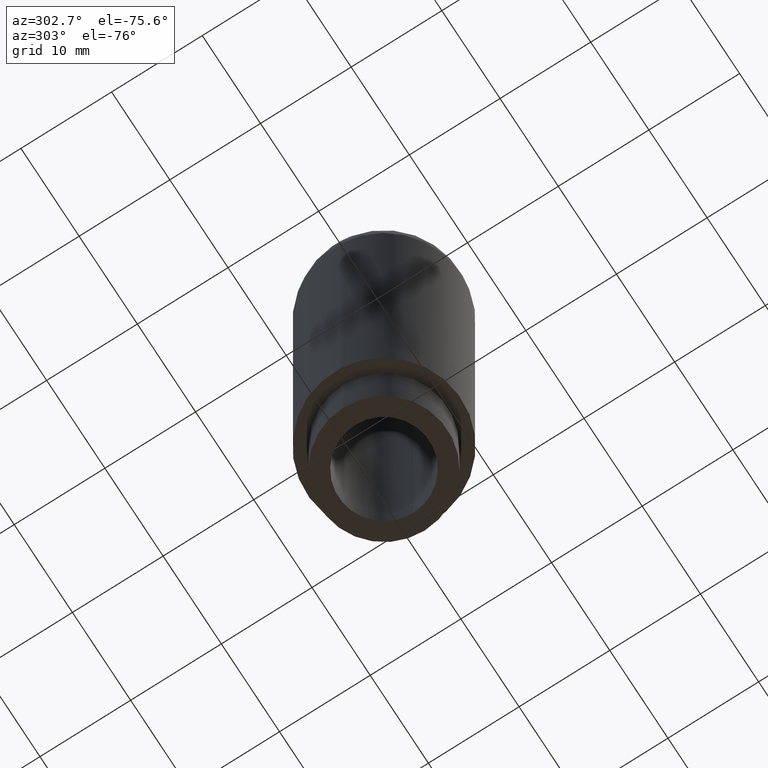
[diagram: clean part render]
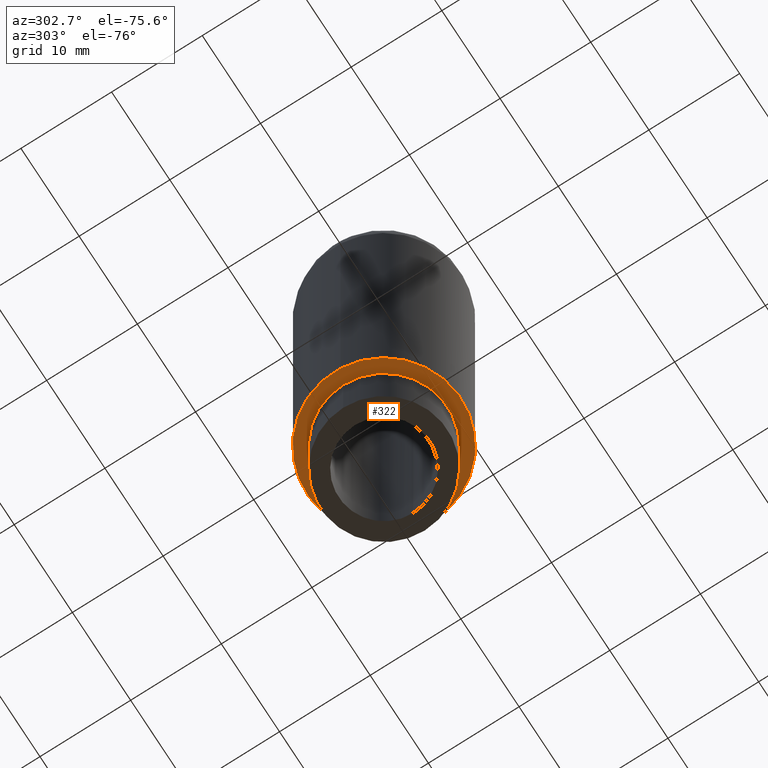
[diagram: same view with one face highlighted and labeled with its STEP entity id]
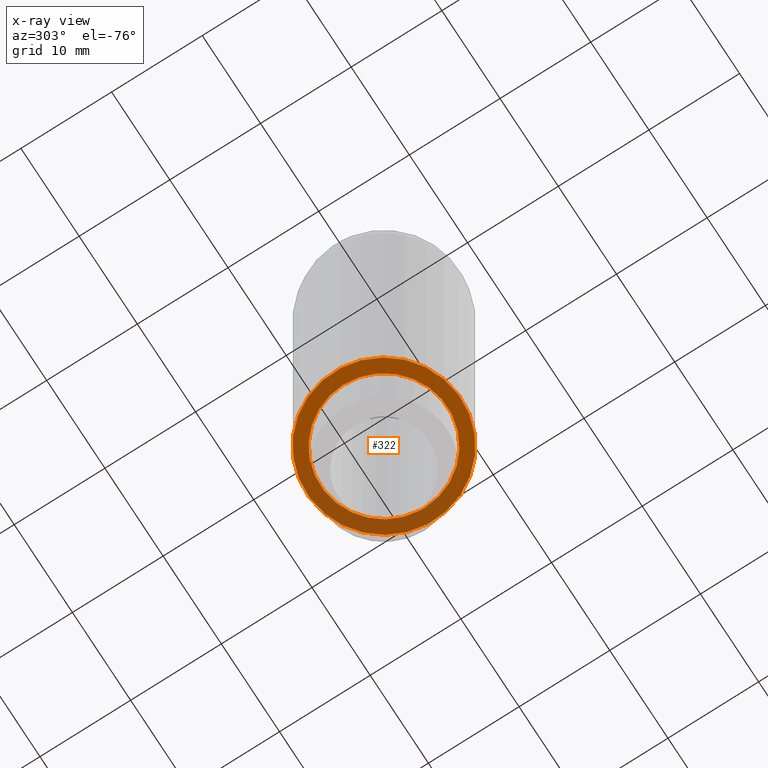
[diagram: x-ray of the same camera — body ghosted, the highlighted face saturated]
A machine part, auxiliary view. The second image highlights one B-rep face of the part: STEP entity #322.
The next image is the same camera in x-ray: the body ghosted, the highlighted face saturated — about 34% of this face is hidden behind the body in this view.
In plain terms, the highlighted planar face has unit normal (0, 0, -1).
Its self-contained STEP definition (entity closure, byte-faithful):
#51=CARTESIAN_POINT('',(-2.716946060098081,-1.613904443833870,8.500000000000000));
#52=VERTEX_POINT('',#51);
#68=CARTESIAN_POINT('',(11.283053939901921,-1.613904443833872,8.500000000000000));
#69=VERTEX_POINT('',#68);
#76=CARTESIAN_POINT('',(4.283053939901920,-1.613904443833871,8.500000000000000));
#77=DIRECTION('',(0.0,0.0,-1.0));
#78=DIRECTION('',(-1.0,0.0,0.0));
#79=AXIS2_PLACEMENT_3D('',#76,#77,#78);
#80=CIRCLE('',#79,7.000000000000001);
#81=EDGE_CURVE('',#69,#52,#80,.T.);
#207=CARTESIAN_POINT('',(-4.193394988336513,-2.246212570434761,8.500000000000000));
#208=VERTEX_POINT('',#207);
#217=CARTESIAN_POINT('',(12.759502868140354,-0.981596317232982,8.500000000000000));
#218=VERTEX_POINT('',#217);
#219=CARTESIAN_POINT('',(4.283053939901921,-1.613904443833872,8.500000000000000));
#220=DIRECTION('',(0.0,0.0,-1.000000000000000));
#221=DIRECTION('',(-0.997229285675110,-0.074389191364810,0.0));
#222=AXIS2_PLACEMENT_3D('',#219,#220,#221);
#223=CIRCLE('',#222,8.500000000000000);
#224=EDGE_CURVE('',#218,#208,#223,.T.);
#284=CARTESIAN_POINT('',(4.283053939901921,-1.613904443833872,8.500000000000000));
#285=DIRECTION('',(0.0,0.0,-1.000000000000000));
#286=DIRECTION('',(-0.997229285675110,-0.074389191364810,0.0));
#287=AXIS2_PLACEMENT_3D('',#284,#285,#286);
#288=CIRCLE('',#287,8.500000000000000);
#289=EDGE_CURVE('',#208,#218,#288,.T.);
#294=CARTESIAN_POINT('',(4.283053939901921,-1.613904443833872,8.500000000000000));
#295=DIRECTION('',(0.0,0.0,-1.0));
#296=DIRECTION('',(-0.997229285675110,-0.074389191364810,0.0));
#297=AXIS2_PLACEMENT_3D('',#294,#295,#296);
#298=PLANE('',#297);
#299=ORIENTED_EDGE('',*,*,#224,.T.);
#300=ORIENTED_EDGE('',*,*,#289,.T.);
#301=EDGE_LOOP('',(#299,#300));
#302=FACE_OUTER_BOUND('',#301,.T.);
#303=CARTESIAN_POINT('',(11.263658939627689,-1.093180104280198,8.500000000000000));
#304=VERTEX_POINT('',#303);
#305=CARTESIAN_POINT('',(4.283053939901920,-1.613904443833871,8.500000000000000));
#306=DIRECTION('',(0.0,0.0,-1.0));
#307=DIRECTION('',(-1.0,0.0,0.0));
#308=AXIS2_PLACEMENT_3D('',#305,#306,#307);
#309=CIRCLE('',#308,7.000000000000001);
#310=EDGE_CURVE('',#304,#69,#309,.T.);
#311=ORIENTED_EDGE('',*,*,#310,.F.);
#312=CARTESIAN_POINT('',(4.283053939901920,-1.613904443833871,8.500000000000000));
#313=DIRECTION('',(0.0,0.0,-1.0));
#314=DIRECTION('',(-1.0,0.0,0.0));
#315=AXIS2_PLACEMENT_3D('',#312,#313,#314);
#316=CIRCLE('',#315,7.000000000000001);
#317=EDGE_CURVE('',#52,#304,#316,.T.);
#318=ORIENTED_EDGE('',*,*,#317,.F.);
#319=ORIENTED_EDGE('',*,*,#81,.F.);
#320=EDGE_LOOP('',(#311,#318,#319));
#321=FACE_BOUND('',#320,.T.);
#322=ADVANCED_FACE('',(#302,#321),#298,.T.);